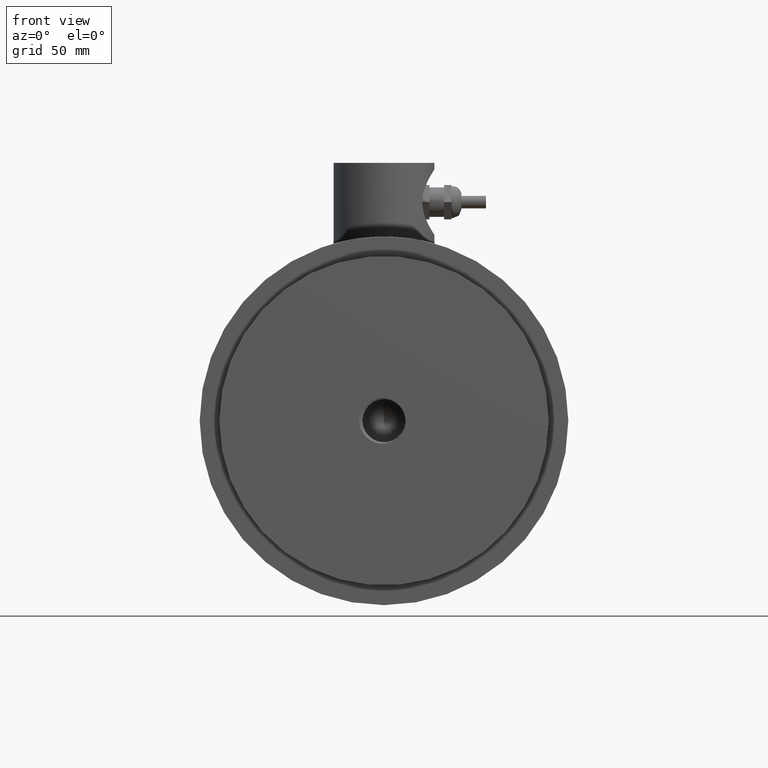
[diagram: clean part render]
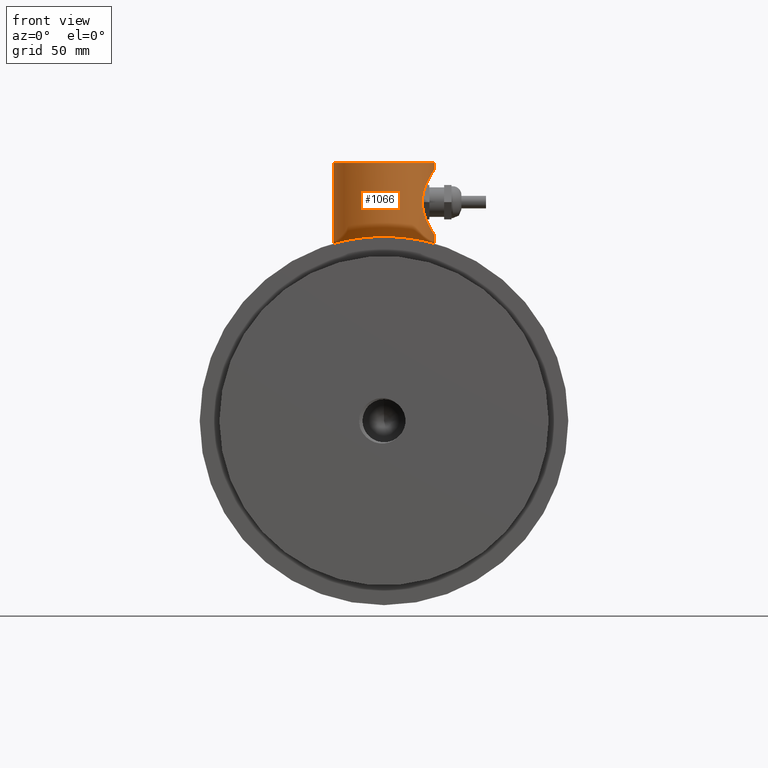
[diagram: same view with one face highlighted and labeled with its STEP entity id]
A machine part, front view. The second image highlights one B-rep face of the part: STEP entity #1066.
In plain terms, the highlighted cylindrical surface (bore or boss wall) has radius 20.5 mm, axis along (0, 0, 1).
Its self-contained STEP definition (entity closure, byte-faithful):
#68=B_SPLINE_CURVE_WITH_KNOTS('',3,(#4202,#4203,#4204,#4205,#4206,#4207,
#4208,#4209,#4210,#4211,#4212,#4213,#4214,#4215,#4216,#4217,#4218,#4219,
#4220,#4221,#4222,#4223,#4224,#4225,#4226,#4227),.UNSPECIFIED.,.F.,.F.,
(4,2,2,2,2,2,2,2,2,2,2,2,4),(2.08150158605407,2.34044044380816,2.59937930156224,
3.11725701707041,3.64013009458928,3.90156663334871,4.16300317210814,4.42443971086757,
4.68587624962701,5.20874932714587,5.72662704265404,5.98556590040813,6.24450475816221),
 .UNSPECIFIED.);
#69=B_SPLINE_CURVE_WITH_KNOTS('',3,(#4231,#4232,#4233,#4234,#4235,#4236,
#4237,#4238,#4239,#4240,#4241,#4242,#4243,#4244,#4245,#4246,#4247,#4248,
#4249,#4250,#4251,#4252,#4253,#4254,#4255,#4256,#4257),.UNSPECIFIED.,.F.,
 .F.,(4,2,2,2,2,2,3,2,2,2,2,2,4),(6.24450475816221,6.5034436159163,6.76238247367038,
7.28026018917856,7.80313326669742,8.06456980545685,8.32600634421629,8.58744288297572,
8.84887942173515,9.37175249925401,9.88963021476219,10.1485690725163,10.4075079302704),
 .UNSPECIFIED.);
#70=B_SPLINE_CURVE_WITH_KNOTS('',3,(#4265,#4266,#4267,#4268,#4269,#4270,
#4271,#4272,#4273,#4274,#4275,#4276,#4277,#4278,#4279,#4280,#4281,#4282,
#4283,#4284,#4285,#4286,#4287,#4288,#4289,#4290,#4291,#4292,#4293,#4294,
#4295,#4296,#4297,#4298),.UNSPECIFIED.,.F.,.F.,(4,2,2,2,2,2,2,2,2,2,2,2,
2,2,2,2,4),(0.,0.388278833398869,0.776557666797739,1.16483650019661,1.55311533359548,
1.9413159045921,2.32951647558872,2.71771704658534,3.10591761758196,3.49411818857859,
3.88231875957521,4.27051933057183,4.65871990156845,5.04699873496732,5.43527756836619,
5.82355640176506,6.21183523516393),.UNSPECIFIED.);
#71=B_SPLINE_CURVE_WITH_KNOTS('',3,(#4299,#4300,#4301,#4302,#4303,#4304,
#4305,#4306,#4307,#4308,#4309,#4310,#4311,#4312,#4313,#4314,#4315,#4316,
#4317,#4318,#4319,#4320,#4321,#4322,#4323,#4324,#4325,#4326,#4327,#4328,
#4329,#4330,#4331,#4332),.UNSPECIFIED.,.F.,.F.,(4,2,2,2,2,2,2,2,2,2,2,2,
2,2,2,2,4),(6.21183523516393,6.6001140685628,6.98839290196167,7.37667173536054,
7.7649505687594,8.15315113975602,8.54135171075265,8.92955228174927,9.31775285274589,
9.70595342374251,10.0941539947391,10.4823545657358,10.8705551367324,11.2588339701312,
11.6471128035301,12.035391636929,12.4236704703279),.UNSPECIFIED.);
#86=FACE_BOUND('',#245,.T.);
#173=FACE_OUTER_BOUND('',#244,.T.);
#244=EDGE_LOOP('',(#944,#945,#946,#947,#948));
#245=EDGE_LOOP('',(#949,#950));
#324=LINE('',#4263,#394);
#394=VECTOR('',#1404,0.807086614173228);
#419=CIRCLE('',#1166,0.807086614173228);
#514=VERTEX_POINT('',#4200);
#515=VERTEX_POINT('',#4201);
#517=VERTEX_POINT('',#4260);
#518=VERTEX_POINT('',#4262);
#519=VERTEX_POINT('',#4264);
#659=EDGE_CURVE('',#514,#515,#68,.T.);
#662=EDGE_CURVE('',#515,#514,#69,.T.);
#663=EDGE_CURVE('',#517,#517,#419,.T.);
#664=EDGE_CURVE('',#517,#518,#324,.T.);
#665=EDGE_CURVE('',#519,#518,#70,.T.);
#666=EDGE_CURVE('',#518,#519,#71,.T.);
#944=ORIENTED_EDGE('',*,*,#663,.F.);
#945=ORIENTED_EDGE('',*,*,#664,.T.);
#946=ORIENTED_EDGE('',*,*,#665,.F.);
#947=ORIENTED_EDGE('',*,*,#666,.F.);
#948=ORIENTED_EDGE('',*,*,#664,.F.);
#949=ORIENTED_EDGE('',*,*,#659,.T.);
#950=ORIENTED_EDGE('',*,*,#662,.T.);
#1006=CYLINDRICAL_SURFACE('',#1165,0.807086614173228);
#1066=ADVANCED_FACE('',(#173,#86),#1006,.T.);
#1165=AXIS2_PLACEMENT_3D('',#4259,#1400,#1401);
#1166=AXIS2_PLACEMENT_3D('',#4261,#1402,#1403);
#1400=DIRECTION('center_axis',(0.,0.,1.));
#1401=DIRECTION('ref_axis',(1.,0.,0.));
#1402=DIRECTION('center_axis',(0.,0.,1.));
#1403=DIRECTION('ref_axis',(1.,0.,0.));
#1404=DIRECTION('',(0.,0.,-1.));
#4200=CARTESIAN_POINT('',(0.807086614173229,3.27952755905512,4.0298031496063));
#4201=CARTESIAN_POINT('',(0.807086614173229,3.27952755905512,2.98255905511811));
#4202=CARTESIAN_POINT('Ctrl Pts',(0.807086614173228,3.27952755905512,4.0298031496063));
#4203=CARTESIAN_POINT('Ctrl Pts',(0.807086614173228,3.31350903645067,4.0298031496063));
#4204=CARTESIAN_POINT('Ctrl Pts',(0.804892575235416,3.34832697086236,4.02644185977266));
#4205=CARTESIAN_POINT('Ctrl Pts',(0.796054055324587,3.41694428921788,4.01266037837374));
#4206=CARTESIAN_POINT('Ctrl Pts',(0.789414663972882,3.45074544333978,4.0022457373812));
#4207=CARTESIAN_POINT('Ctrl Pts',(0.764319866982765,3.54713365405275,3.9616254435567));
#4208=CARTESIAN_POINT('Ctrl Pts',(0.74045315171569,3.6046414156864,3.92158064650109));
#4209=CARTESIAN_POINT('Ctrl Pts',(0.693614582431741,3.69536254353057,3.83085951865691));
#4210=CARTESIAN_POINT('Ctrl Pts',(0.667052238342782,3.73511497200669,3.7734541165197));
#4211=CARTESIAN_POINT('Ctrl Pts',(0.63690790475914,3.77553120781765,3.67754049256915));
#4212=CARTESIAN_POINT('Ctrl Pts',(0.628520918396346,3.78591709054496,3.64391704962915));
#4213=CARTESIAN_POINT('Ctrl Pts',(0.617136934627805,3.79973031484864,3.57539555768172));
#4214=CARTESIAN_POINT('Ctrl Pts',(0.614173228346457,3.80314960629921,3.54049035941725));
#4215=CARTESIAN_POINT('Ctrl Pts',(0.614173228346457,3.80314960629921,3.47187184530716));
#4216=CARTESIAN_POINT('Ctrl Pts',(0.617136934627805,3.79973031484864,3.43696664704269));
#4217=CARTESIAN_POINT('Ctrl Pts',(0.628520918396346,3.78591709054496,3.36844515509526));
#4218=CARTESIAN_POINT('Ctrl Pts',(0.63690790475914,3.77553120781765,3.33482171215525));
#4219=CARTESIAN_POINT('Ctrl Pts',(0.667052238342782,3.73511497200669,3.23890808820471));
#4220=CARTESIAN_POINT('Ctrl Pts',(0.693614582431741,3.69536254353057,3.18150268606749));
#4221=CARTESIAN_POINT('Ctrl Pts',(0.74045315171569,3.6046414156864,3.09078155822332));
#4222=CARTESIAN_POINT('Ctrl Pts',(0.764319866982765,3.54713365405275,3.05073676116771));
#4223=CARTESIAN_POINT('Ctrl Pts',(0.789414663972882,3.45074544333978,3.01011646734321));
#4224=CARTESIAN_POINT('Ctrl Pts',(0.796054055324587,3.41694428921788,2.99970182635067));
#4225=CARTESIAN_POINT('Ctrl Pts',(0.804892575235416,3.34832697086237,2.98592034495175));
#4226=CARTESIAN_POINT('Ctrl Pts',(0.807086614173228,3.31350903645067,2.98255905511811));
#4227=CARTESIAN_POINT('Ctrl Pts',(0.807086614173228,3.27952755905512,2.98255905511811));
#4231=CARTESIAN_POINT('Ctrl Pts',(0.807086614173228,3.27952755905512,2.98255905511811));
#4232=CARTESIAN_POINT('Ctrl Pts',(0.807086614173228,3.24554608165957,2.98255905511811));
#4233=CARTESIAN_POINT('Ctrl Pts',(0.804892575235416,3.21072814724787,2.98592034495175));
#4234=CARTESIAN_POINT('Ctrl Pts',(0.796054055324587,3.14211082889235,2.99970182635067));
#4235=CARTESIAN_POINT('Ctrl Pts',(0.789414663972881,3.10830967477045,3.01011646734321));
#4236=CARTESIAN_POINT('Ctrl Pts',(0.764319866982764,3.01192146405749,3.05073676116771));
#4237=CARTESIAN_POINT('Ctrl Pts',(0.74045315171569,2.95441370242384,3.09078155822332));
#4238=CARTESIAN_POINT('Ctrl Pts',(0.693614582431741,2.86369257457966,3.18150268606749));
#4239=CARTESIAN_POINT('Ctrl Pts',(0.667052238342781,2.82394014610355,3.23890808820471));
#4240=CARTESIAN_POINT('Ctrl Pts',(0.63690790475914,2.78352391029259,3.33482171215525));
#4241=CARTESIAN_POINT('Ctrl Pts',(0.628520918396346,2.77313802756528,3.36844515509526));
#4242=CARTESIAN_POINT('Ctrl Pts',(0.617136934627805,2.75932480326159,3.43696664704268));
#4243=CARTESIAN_POINT('Ctrl Pts',(0.614173228346457,2.75590551181102,3.47187184530716));
#4244=CARTESIAN_POINT('Ctrl Pts',(0.614173228346457,2.75590551181102,3.5061811023622));
#4245=CARTESIAN_POINT('Ctrl Pts',(0.614173228346457,2.75590551181102,3.54049035941725));
#4246=CARTESIAN_POINT('Ctrl Pts',(0.617136934627805,2.75932480326159,3.57539555768172));
#4247=CARTESIAN_POINT('Ctrl Pts',(0.628520918396346,2.77313802756528,3.64391704962915));
#4248=CARTESIAN_POINT('Ctrl Pts',(0.63690790475914,2.78352391029259,3.67754049256915));
#4249=CARTESIAN_POINT('Ctrl Pts',(0.667052238342781,2.82394014610355,3.7734541165197));
#4250=CARTESIAN_POINT('Ctrl Pts',(0.693614582431741,2.86369257457966,3.83085951865691));
#4251=CARTESIAN_POINT('Ctrl Pts',(0.74045315171569,2.95441370242384,3.92158064650109));
#4252=CARTESIAN_POINT('Ctrl Pts',(0.764319866982764,3.01192146405749,3.9616254435567));
#4253=CARTESIAN_POINT('Ctrl Pts',(0.789414663972881,3.10830967477045,4.0022457373812));
#4254=CARTESIAN_POINT('Ctrl Pts',(0.796054055324587,3.14211082889235,4.01266037837374));
#4255=CARTESIAN_POINT('Ctrl Pts',(0.804892575235416,3.21072814724787,4.02644185977266));
#4256=CARTESIAN_POINT('Ctrl Pts',(0.807086614173228,3.24554608165957,4.0298031496063));
#4257=CARTESIAN_POINT('Ctrl Pts',(0.807086614173228,3.27952755905512,4.0298031496063));
#4259=CARTESIAN_POINT('Origin',(7.27910530162105E-32,3.27952755905512,0.));
#4260=CARTESIAN_POINT('',(-0.807086614173228,3.27952755905512,4.13610236220472));
#4261=CARTESIAN_POINT('Origin',(7.27910530162105E-32,3.27952755905512,4.13610236220472));
#4262=CARTESIAN_POINT('',(-0.807086614173228,3.27952755905512,2.84264598520857));
#4263=CARTESIAN_POINT('',(-0.807086614173228,3.27952755905512,0.));
#4264=CARTESIAN_POINT('',(0.807086614173229,3.27952755905512,2.84264598520857));
#4265=CARTESIAN_POINT('Ctrl Pts',(0.807086614173229,3.27952755905512,2.84264598520857));
#4266=CARTESIAN_POINT('Ctrl Pts',(0.807086614173229,3.22857233157495,2.84264598520857));
#4267=CARTESIAN_POINT('Ctrl Pts',(0.802183284662039,3.17596518079491,2.84405358107829));
#4268=CARTESIAN_POINT('Ctrl Pts',(0.781628797974809,3.07149003679552,2.84977108138661));
#4269=CARTESIAN_POINT('Ctrl Pts',(0.76598301880763,3.01962071032881,2.85407595513006));
#4270=CARTESIAN_POINT('Ctrl Pts',(0.724722393990072,2.92027967480577,2.86483105340367));
#4271=CARTESIAN_POINT('Ctrl Pts',(0.699074781857748,2.87272388903934,2.87127880868704));
#4272=CARTESIAN_POINT('Ctrl Pts',(0.639907458221238,2.78484258695526,2.88504176619003));
#4273=CARTESIAN_POINT('Ctrl Pts',(0.606383201108938,2.74451792439049,2.89234287423253));
#4274=CARTESIAN_POINT('Ctrl Pts',(0.535016827777261,2.67315155105882,2.90639026104041));
#4275=CARTESIAN_POINT('Ctrl Pts',(0.494695534511236,2.63962812324601,2.91363659302528));
#4276=CARTESIAN_POINT('Ctrl Pts',(0.406812207623326,2.58045761433983,2.92720100023748));
#4277=CARTESIAN_POINT('Ctrl Pts',(0.359251030330592,2.55480631618375,2.93350622458203));
#4278=CARTESIAN_POINT('Ctrl Pts',(0.259899370524386,2.51354158981824,2.94397221273453));
#4279=CARTESIAN_POINT('Ctrl Pts',(0.208024975618458,2.49789538335163,2.94813280822357));
#4280=CARTESIAN_POINT('Ctrl Pts',(0.103548378744238,2.47734242964996,2.95364845211226));
#4281=CARTESIAN_POINT('Ctrl Pts',(0.0509449568237036,2.47244094488189,2.955));
#4282=CARTESIAN_POINT('Ctrl Pts',(-0.0509449568237036,2.47244094488189,
2.955));
#4283=CARTESIAN_POINT('Ctrl Pts',(-0.103548378744238,2.47734242964996,2.95364845211226));
#4284=CARTESIAN_POINT('Ctrl Pts',(-0.208024975618458,2.49789538335163,2.94813280822357));
#4285=CARTESIAN_POINT('Ctrl Pts',(-0.259899370524386,2.51354158981824,2.94397221273453));
#4286=CARTESIAN_POINT('Ctrl Pts',(-0.359251030330592,2.55480631618375,2.93350622458203));
#4287=CARTESIAN_POINT('Ctrl Pts',(-0.406812207623326,2.58045761433983,2.92720100023748));
#4288=CARTESIAN_POINT('Ctrl Pts',(-0.494695534511236,2.63962812324601,2.91363659302528));
#4289=CARTESIAN_POINT('Ctrl Pts',(-0.535016827777261,2.67315155105882,2.90639026104041));
#4290=CARTESIAN_POINT('Ctrl Pts',(-0.606383201108938,2.74451792439049,2.89234287423253));
#4291=CARTESIAN_POINT('Ctrl Pts',(-0.639907458221238,2.78484258695526,2.88504176619003));
#4292=CARTESIAN_POINT('Ctrl Pts',(-0.699074781857748,2.87272388903934,2.87127880868704));
#4293=CARTESIAN_POINT('Ctrl Pts',(-0.724722393990072,2.92027967480577,2.86483105340367));
#4294=CARTESIAN_POINT('Ctrl Pts',(-0.76598301880763,3.01962071032881,2.85407595513006));
#4295=CARTESIAN_POINT('Ctrl Pts',(-0.781628797974809,3.07149003679552,2.84977108138661));
#4296=CARTESIAN_POINT('Ctrl Pts',(-0.802183284662039,3.17596518079491,2.84405358107829));
#4297=CARTESIAN_POINT('Ctrl Pts',(-0.807086614173228,3.22857233157495,2.84264598520857));
#4298=CARTESIAN_POINT('Ctrl Pts',(-0.807086614173228,3.27952755905512,2.84264598520857));
#4299=CARTESIAN_POINT('Ctrl Pts',(-0.807086614173228,3.27952755905512,2.84264598520857));
#4300=CARTESIAN_POINT('Ctrl Pts',(-0.807086614173228,3.33048278653528,2.84264598520857));
#4301=CARTESIAN_POINT('Ctrl Pts',(-0.802183284662039,3.38308993731532,2.84405358107829));
#4302=CARTESIAN_POINT('Ctrl Pts',(-0.781628797974809,3.48756508131472,2.84977108138661));
#4303=CARTESIAN_POINT('Ctrl Pts',(-0.765983018807631,3.53943440778143,2.85407595513006));
#4304=CARTESIAN_POINT('Ctrl Pts',(-0.724722393990072,3.63877544330447,2.86483105340367));
#4305=CARTESIAN_POINT('Ctrl Pts',(-0.699074781857749,3.68633122907089,2.87127880868704));
#4306=CARTESIAN_POINT('Ctrl Pts',(-0.639907458221238,3.77421253115497,2.88504176619003));
#4307=CARTESIAN_POINT('Ctrl Pts',(-0.606383201108938,3.81453719371974,2.89234287423253));
#4308=CARTESIAN_POINT('Ctrl Pts',(-0.535016827777261,3.88590356705142,2.90639026104041));
#4309=CARTESIAN_POINT('Ctrl Pts',(-0.494695534511237,3.91942699486422,2.91363659302528));
#4310=CARTESIAN_POINT('Ctrl Pts',(-0.406812207623326,3.9785975037704,2.92720100023748));
#4311=CARTESIAN_POINT('Ctrl Pts',(-0.359251030330592,4.00424880192648,2.93350622458203));
#4312=CARTESIAN_POINT('Ctrl Pts',(-0.259899370524386,4.045513528292,2.94397221273453));
#4313=CARTESIAN_POINT('Ctrl Pts',(-0.208024975618458,4.0611597347586,2.94813280822357));
#4314=CARTESIAN_POINT('Ctrl Pts',(-0.103548378744239,4.08171268846027,2.95364845211226));
#4315=CARTESIAN_POINT('Ctrl Pts',(-0.0509449568237038,4.08661417322835,
2.955));
#4316=CARTESIAN_POINT('Ctrl Pts',(0.0509449568237035,4.08661417322835,2.955));
#4317=CARTESIAN_POINT('Ctrl Pts',(0.103548378744239,4.08171268846027,2.95364845211226));
#4318=CARTESIAN_POINT('Ctrl Pts',(0.208024975618458,4.0611597347586,2.94813280822357));
#4319=CARTESIAN_POINT('Ctrl Pts',(0.259899370524385,4.045513528292,2.94397221273453));
#4320=CARTESIAN_POINT('Ctrl Pts',(0.359251030330591,4.00424880192648,2.93350622458203));
#4321=CARTESIAN_POINT('Ctrl Pts',(0.406812207623326,3.9785975037704,2.92720100023748));
#4322=CARTESIAN_POINT('Ctrl Pts',(0.494695534511236,3.91942699486422,2.91363659302528));
#4323=CARTESIAN_POINT('Ctrl Pts',(0.535016827777261,3.88590356705142,2.90639026104041));
#4324=CARTESIAN_POINT('Ctrl Pts',(0.606383201108938,3.81453719371974,2.89234287423253));
#4325=CARTESIAN_POINT('Ctrl Pts',(0.639907458221237,3.77421253115497,2.88504176619003));
#4326=CARTESIAN_POINT('Ctrl Pts',(0.699074781857748,3.68633122907089,2.87127880868704));
#4327=CARTESIAN_POINT('Ctrl Pts',(0.724722393990072,3.63877544330447,2.86483105340367));
#4328=CARTESIAN_POINT('Ctrl Pts',(0.76598301880763,3.53943440778143,2.85407595513006));
#4329=CARTESIAN_POINT('Ctrl Pts',(0.781628797974809,3.48756508131472,2.84977108138661));
#4330=CARTESIAN_POINT('Ctrl Pts',(0.802183284662039,3.38308993731533,2.84405358107829));
#4331=CARTESIAN_POINT('Ctrl Pts',(0.807086614173228,3.33048278653528,2.84264598520857));
#4332=CARTESIAN_POINT('Ctrl Pts',(0.807086614173228,3.27952755905512,2.84264598520857));